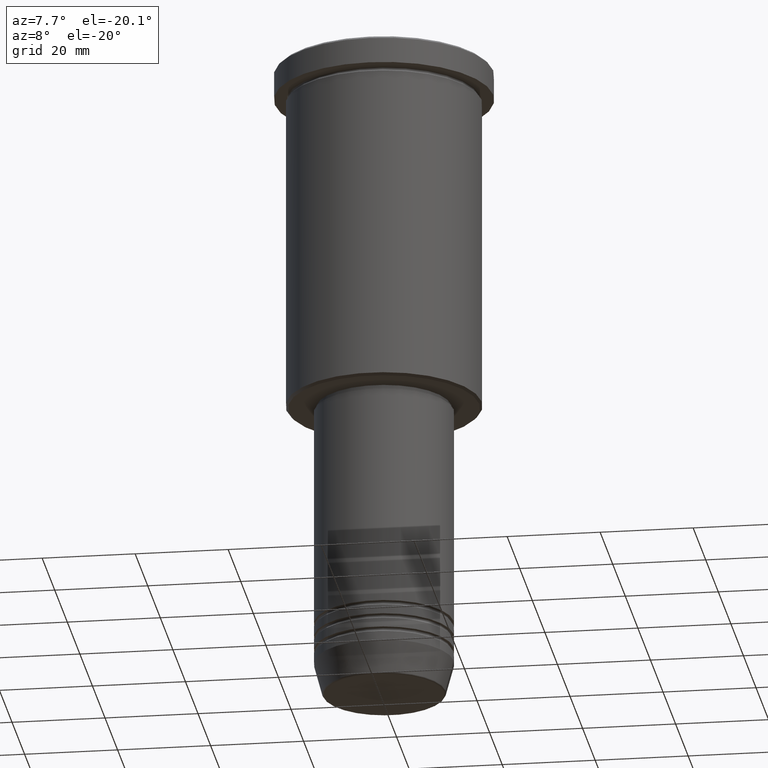
[diagram: clean part render]
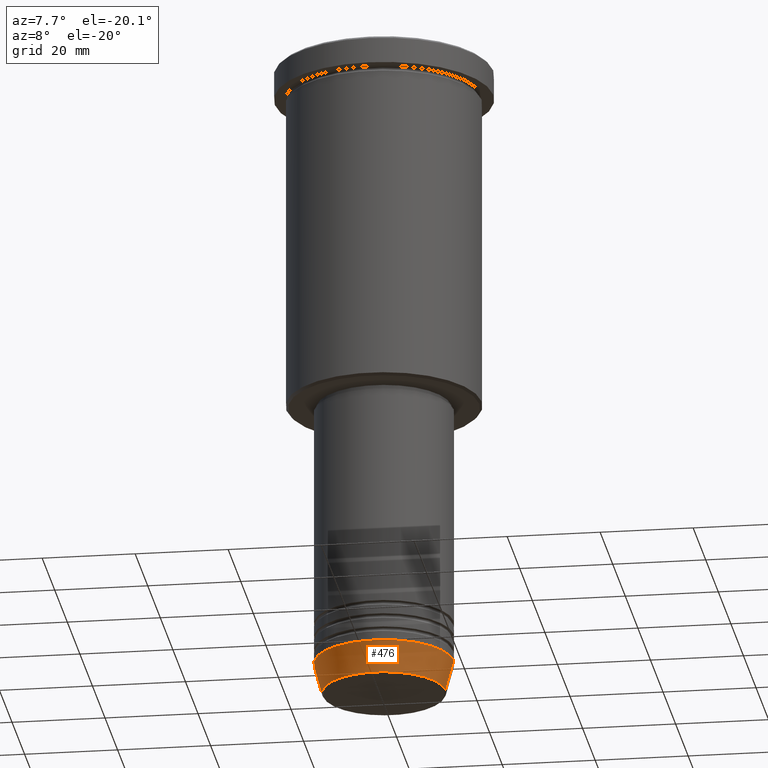
[diagram: same view with one face highlighted and labeled with its STEP entity id]
A machine part, auxiliary view. The second image highlights one B-rep face of the part: STEP entity #476.
In plain terms, the highlighted conical surface has half-angle 15 deg.
Its self-contained STEP definition (entity closure, byte-faithful):
#24 = VERTEX_POINT ( 'NONE', #206 ) ;
#61 = DIRECTION ( 'NONE',  ( 1.000000000000000000, 0.000000000000000000, 0.000000000000000000 ) ) ;
#136 = EDGE_LOOP ( 'NONE', ( #1054, #200, #161, #948 ) ) ;
#161 = ORIENTED_EDGE ( 'NONE', *, *, #929, .T. ) ;
#162 = VERTEX_POINT ( 'NONE', #505 ) ;
#176 = AXIS2_PLACEMENT_3D ( 'NONE', #649, #468, #817 ) ;
#200 = ORIENTED_EDGE ( 'NONE', *, *, #264, .T. ) ;
#206 = CARTESIAN_POINT ( 'NONE',  ( -13.22365507213719660, 1.728200442216588780E-15, -140.6294095225512706 ) ) ;
#213 = CARTESIAN_POINT ( 'NONE',  ( 0.000000000000000000, 0.000000000000000000, -140.6294095225512706 ) ) ;
#221 = EDGE_CURVE ( 'NONE', #24, #368, #475, .T. ) ;
#264 = EDGE_CURVE ( 'NONE', #24, #162, #278, .T. ) ;
#278 = CIRCLE ( 'NONE', #1086, 13.22365507213719482 ) ;
#329 = DIRECTION ( 'NONE',  ( 0.2588190451025213501, 0.000000000000000000, 0.9659258262890680902 ) ) ;
#368 = VERTEX_POINT ( 'NONE', #417 ) ;
#385 = DIRECTION ( 'NONE',  ( 1.000000000000000000, 0.000000000000000000, 0.000000000000000000 ) ) ;
#417 = CARTESIAN_POINT ( 'NONE',  ( -15.00000000000000000, 1.836970198721029589E-15, -134.0000000000000000 ) ) ;
#437 = CARTESIAN_POINT ( 'NONE',  ( 15.00000000000000000, 0.000000000000000000, -134.0000000000000000 ) ) ;
#446 = AXIS2_PLACEMENT_3D ( 'NONE', #1044, #848, #61 ) ;
#467 = DIRECTION ( 'NONE',  ( -0.000000000000000000, -0.000000000000000000, 1.000000000000000000 ) ) ;
#468 = DIRECTION ( 'NONE',  ( -0.000000000000000000, -0.000000000000000000, 1.000000000000000000 ) ) ;
#475 = LINE ( 'NONE', #1101, #1085 ) ;
#476 = ADVANCED_FACE ( 'NONE', ( #1039 ), #921, .T. ) ;
#505 = CARTESIAN_POINT ( 'NONE',  ( 13.22365507213719482, 0.000000000000000000, -140.6294095225512706 ) ) ;
#522 = VECTOR ( 'NONE', #329, 1000.000000000000000 ) ;
#622 = CIRCLE ( 'NONE', #176, 15.00000000000000000 ) ;
#639 = DIRECTION ( 'NONE',  ( -0.2588190451025213501, 3.169619151431772337E-17, 0.9659258262890680902 ) ) ;
#649 = CARTESIAN_POINT ( 'NONE',  ( 0.000000000000000000, 0.000000000000000000, -134.0000000000000000 ) ) ;
#679 = LINE ( 'NONE', #1050, #522 ) ;
#817 = DIRECTION ( 'NONE',  ( 1.000000000000000000, 0.000000000000000000, 0.000000000000000000 ) ) ;
#848 = DIRECTION ( 'NONE',  ( -0.000000000000000000, -0.000000000000000000, 1.000000000000000000 ) ) ;
#921 = CONICAL_SURFACE ( 'NONE', #446, 15.00000000000000000, 0.2617993877991500740 ) ;
#929 = EDGE_CURVE ( 'NONE', #162, #1076, #679, .T. ) ;
#948 = ORIENTED_EDGE ( 'NONE', *, *, #1138, .F. ) ;
#1039 = FACE_OUTER_BOUND ( 'NONE', #136, .T. ) ;
#1044 = CARTESIAN_POINT ( 'NONE',  ( 0.000000000000000000, 0.000000000000000000, -134.0000000000000000 ) ) ;
#1050 = CARTESIAN_POINT ( 'NONE',  ( 15.00000000000000000, 0.000000000000000000, -134.0000000000000000 ) ) ;
#1054 = ORIENTED_EDGE ( 'NONE', *, *, #221, .F. ) ;
#1076 = VERTEX_POINT ( 'NONE', #437 ) ;
#1085 = VECTOR ( 'NONE', #639, 1000.000000000000000 ) ;
#1086 = AXIS2_PLACEMENT_3D ( 'NONE', #213, #467, #385 ) ;
#1101 = CARTESIAN_POINT ( 'NONE',  ( -15.00000000000000000, 1.836970198721029589E-15, -134.0000000000000000 ) ) ;
#1138 = EDGE_CURVE ( 'NONE', #368, #1076, #622, .T. ) ;